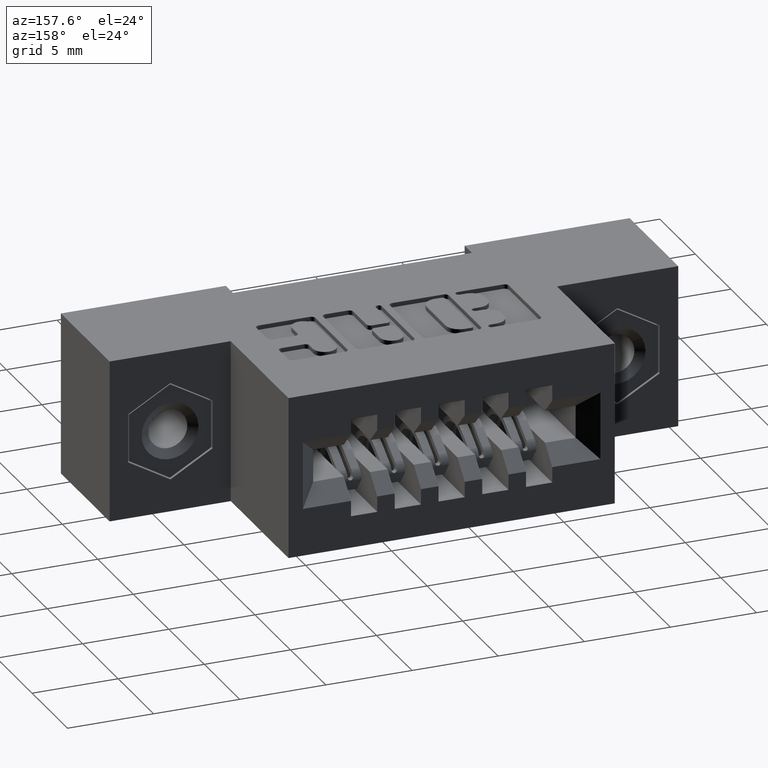
[diagram: clean part render]
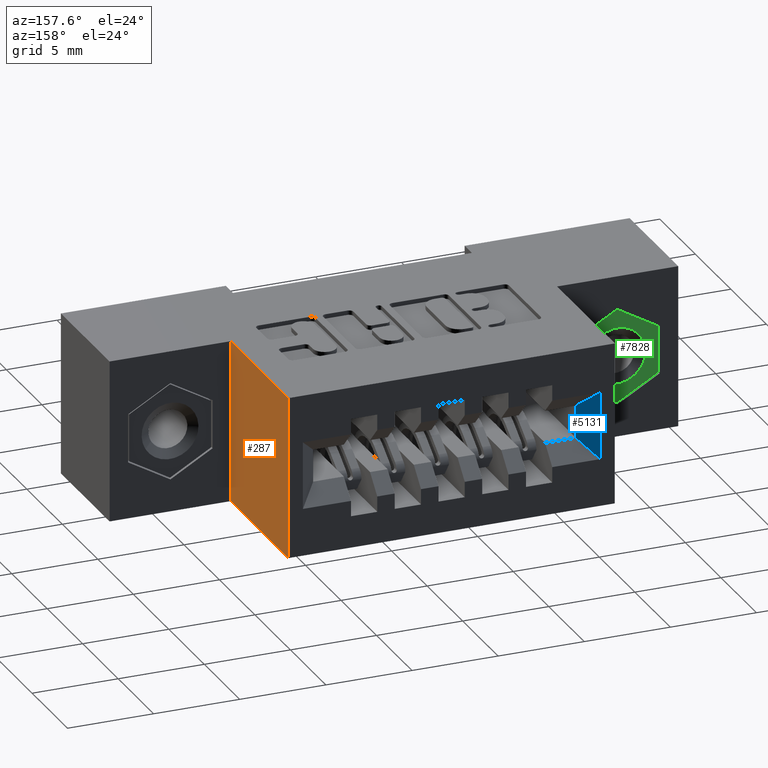
[diagram: same view with three faces highlighted in distinct colors, each labeled with its STEP entity id]
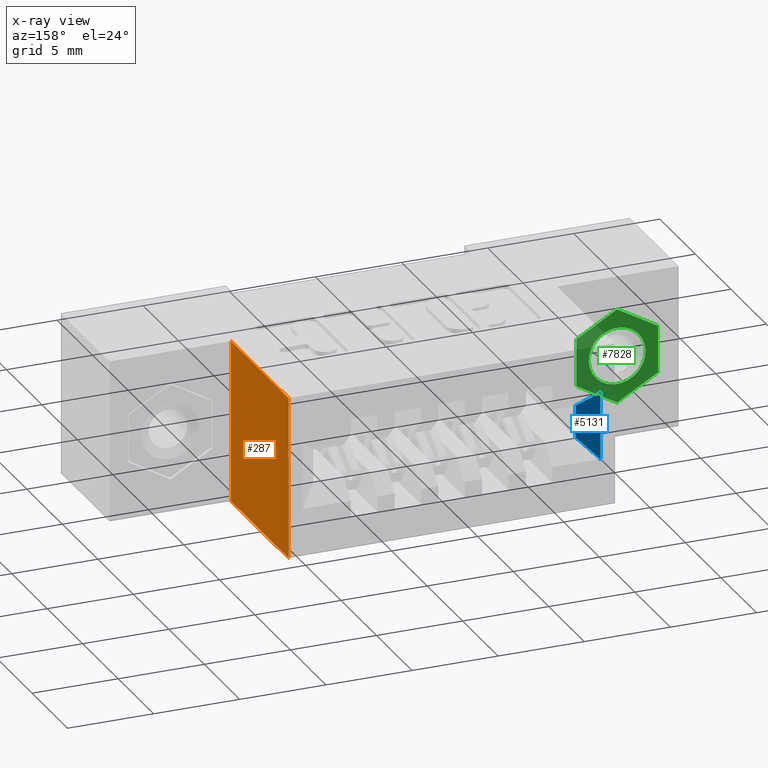
[diagram: x-ray of the same camera — body ghosted, the three highlighted faces saturated]
A machine part, auxiliary view with three faces highlighted in distinct colors.
The next image is the same camera in x-ray (body ghosted, the three faces saturated) — at least one of them is partly hidden behind the body in this view.
Their STEP definitions:

[orange] entity #287 — the highlighted planar face has unit normal (-1, 0, 0).
#287 = ADVANCED_FACE ( 'NONE', ( #5401 ), #4410, .F. ) ;
#342 = EDGE_CURVE ( 'NONE', #1365, #6610, #6550, .T. ) ;
#370 = DIRECTION ( 'NONE',  ( -1.000000000000000000, 0.0000000000000000000, 0.0000000000000000000 ) ) ;
#730 = EDGE_CURVE ( 'NONE', #7582, #5308, #5073, .T. ) ;
#858 = EDGE_LOOP ( 'NONE', ( #7861, #2056, #6873, #7873 ) ) ;
#1127 = DIRECTION ( 'NONE',  ( 0.0000000000000000000, 0.0000000000000000000, 1.000000000000000000 ) ) ;
#1313 = EDGE_CURVE ( 'NONE', #6610, #5308, #3882, .T. ) ;
#1365 = VERTEX_POINT ( 'NONE', #4571 ) ;
#2056 = ORIENTED_EDGE ( 'NONE', *, *, #730, .F. ) ;
#2060 = AXIS2_PLACEMENT_3D ( 'NONE', #5228, #370, #1127 ) ;
#2351 = CARTESIAN_POINT ( 'NONE',  ( 1.022999999999999500, 0.2699999999999999600, -0.3699999999999991100 ) ) ;
#3072 = CARTESIAN_POINT ( 'NONE',  ( 1.022999999999999500, 0.5899999999999999700, -1.083200093845833700E-016 ) ) ;
#3882 = LINE ( 'NONE', #7518, #5675 ) ;
#4070 = CARTESIAN_POINT ( 'NONE',  ( 1.022999999999999500, 0.5899999999999999700, -0.3700000000000000000 ) ) ;
#4257 = DIRECTION ( 'NONE',  ( 0.0000000000000000000, 0.0000000000000000000, 1.000000000000000000 ) ) ;
#4410 = PLANE ( 'NONE',  #2060 ) ;
#4565 = VECTOR ( 'NONE', #8458, 39.37007874015748100 ) ;
#4571 = CARTESIAN_POINT ( 'NONE',  ( 1.022999999999999500, 0.2699999999999999600, -0.3699999999999991100 ) ) ;
#5073 = LINE ( 'NONE', #7016, #7767 ) ;
#5101 = DIRECTION ( 'NONE',  ( -0.0000000000000000000, 1.000000000000000000, -0.0000000000000000000 ) ) ;
#5228 = CARTESIAN_POINT ( 'NONE',  ( 1.022999999999999500, 0.2699999999999999600, -0.3699999999999991100 ) ) ;
#5308 = VERTEX_POINT ( 'NONE', #3072 ) ;
#5401 = FACE_OUTER_BOUND ( 'NONE', #858, .T. ) ;
#5675 = VECTOR ( 'NONE', #8192, 39.37007874015748100 ) ;
#5721 = VECTOR ( 'NONE', #4257, 39.37007874015748100 ) ;
#6550 = LINE ( 'NONE', #2351, #4565 ) ;
#6610 = VERTEX_POINT ( 'NONE', #4070 ) ;
#6624 = CARTESIAN_POINT ( 'NONE',  ( 1.022999999999999500, 0.2699999999999999600, -0.3699999999999991100 ) ) ;
#6873 = ORIENTED_EDGE ( 'NONE', *, *, #7258, .F. ) ;
#7016 = CARTESIAN_POINT ( 'NONE',  ( 1.022999999999999500, 0.2699999999999999600, -1.083200093845833700E-016 ) ) ;
#7191 = CARTESIAN_POINT ( 'NONE',  ( 1.022999999999999500, 0.2699999999999999600, -1.083200093845833700E-016 ) ) ;
#7258 = EDGE_CURVE ( 'NONE', #1365, #7582, #7678, .T. ) ;
#7518 = CARTESIAN_POINT ( 'NONE',  ( 1.022999999999999500, 0.5899999999999999700, -0.3699999999999991100 ) ) ;
#7582 = VERTEX_POINT ( 'NONE', #7191 ) ;
#7678 = LINE ( 'NONE', #6624, #5721 ) ;
#7767 = VECTOR ( 'NONE', #5101, 39.37007874015748100 ) ;
#7861 = ORIENTED_EDGE ( 'NONE', *, *, #1313, .T. ) ;
#7873 = ORIENTED_EDGE ( 'NONE', *, *, #342, .T. ) ;
#8192 = DIRECTION ( 'NONE',  ( 0.0000000000000000000, 0.0000000000000000000, 1.000000000000000000 ) ) ;
#8458 = DIRECTION ( 'NONE',  ( -0.0000000000000000000, 1.000000000000000000, -0.0000000000000000000 ) ) ;

[blue] entity #5131 — the highlighted planar face has unit normal (-0.7071, -0.7071, 0).
#193 = CARTESIAN_POINT ( 'NONE',  ( 0.3099999999999995500, 0.5899999999999999700, -0.1079999999999997800 ) ) ;
#276 = DIRECTION ( 'NONE',  ( 0.5773502691896269500, -0.5773502691896230700, 0.5773502691896269500 ) ) ;
#738 = PLANE ( 'NONE',  #8900 ) ;
#772 = EDGE_CURVE ( 'NONE', #7410, #7939, #2974, .T. ) ;
#795 = VECTOR ( 'NONE', #3440, 39.37007874015748100 ) ;
#1058 = LINE ( 'NONE', #8409, #795 ) ;
#1086 = VECTOR ( 'NONE', #3581, 39.37007874015748100 ) ;
#1288 = EDGE_CURVE ( 'NONE', #3828, #7410, #4527, .T. ) ;
#1305 = ORIENTED_EDGE ( 'NONE', *, *, #1768, .F. ) ;
#1539 = DIRECTION ( 'NONE',  ( 0.7071067811865499000, -0.7071067811865451300, 0.0000000000000000000 ) ) ;
#1709 = EDGE_CURVE ( 'NONE', #7939, #8742, #8692, .T. ) ;
#1768 = EDGE_CURVE ( 'NONE', #8742, #3828, #1058, .T. ) ;
#2561 = CARTESIAN_POINT ( 'NONE',  ( 0.3499999999999999800, 0.5499999999999998200, -0.2220000000000002000 ) ) ;
#2815 = DIRECTION ( 'NONE',  ( -0.5773502691896270600, 0.5773502691896231800, 0.5773502691896272900 ) ) ;
#2892 = CARTESIAN_POINT ( 'NONE',  ( 0.3499999999999999800, 0.5499999999999998200, -0.1480000000000001900 ) ) ;
#2974 = LINE ( 'NONE', #3780, #1086 ) ;
#3356 = VECTOR ( 'NONE', #2815, 39.37007874015747400 ) ;
#3440 = DIRECTION ( 'NONE',  ( 0.0000000000000000000, 0.0000000000000000000, -1.000000000000000000 ) ) ;
#3581 = DIRECTION ( 'NONE',  ( 0.0000000000000000000, 0.0000000000000000000, 1.000000000000000000 ) ) ;
#3629 = ORIENTED_EDGE ( 'NONE', *, *, #1709, .F. ) ;
#3780 = CARTESIAN_POINT ( 'NONE',  ( 0.3499999999999999800, 0.5499999999999998200, -0.1480000000000001900 ) ) ;
#3828 = VERTEX_POINT ( 'NONE', #4425 ) ;
#4405 = CARTESIAN_POINT ( 'NONE',  ( 0.3499999999999999800, 0.5499999999999998200, -0.2220000000000002000 ) ) ;
#4425 = CARTESIAN_POINT ( 'NONE',  ( 0.3099999999999995500, 0.5899999999999999700, -0.2620000000000005700 ) ) ;
#4527 = LINE ( 'NONE', #2561, #7853 ) ;
#5131 = ADVANCED_FACE ( 'NONE', ( #6162 ), #738, .F. ) ;
#5580 = DIRECTION ( 'NONE',  ( -0.7071067811865451300, -0.7071067811865499000, 0.0000000000000000000 ) ) ;
#6162 = FACE_OUTER_BOUND ( 'NONE', #8272, .T. ) ;
#7054 = ORIENTED_EDGE ( 'NONE', *, *, #1288, .F. ) ;
#7410 = VERTEX_POINT ( 'NONE', #4405 ) ;
#7471 = CARTESIAN_POINT ( 'NONE',  ( 0.3499999999999999800, 0.5499999999999998200, -0.1480000000000001900 ) ) ;
#7853 = VECTOR ( 'NONE', #276, 39.37007874015748900 ) ;
#7939 = VERTEX_POINT ( 'NONE', #7471 ) ;
#8247 = CARTESIAN_POINT ( 'NONE',  ( 0.3499999999999999800, 0.5499999999999998200, -0.1480000000000001900 ) ) ;
#8272 = EDGE_LOOP ( 'NONE', ( #7054, #1305, #3629, #8282 ) ) ;
#8282 = ORIENTED_EDGE ( 'NONE', *, *, #772, .F. ) ;
#8409 = CARTESIAN_POINT ( 'NONE',  ( 0.3099999999999995500, 0.5899999999999999700, -0.3700000000000000000 ) ) ;
#8692 = LINE ( 'NONE', #2892, #3356 ) ;
#8742 = VERTEX_POINT ( 'NONE', #193 ) ;
#8900 = AXIS2_PLACEMENT_3D ( 'NONE', #8247, #5580, #1539 ) ;

[green] entity #7828 — the highlighted planar face has unit normal (-0, -1, -0).
#40 = VERTEX_POINT ( 'NONE', #563 ) ;
#135 = EDGE_LOOP ( 'NONE', ( #5871, #6983 ) ) ;
#274 = VERTEX_POINT ( 'NONE', #3132 ) ;
#396 = ORIENTED_EDGE ( 'NONE', *, *, #8489, .F. ) ;
#479 = CARTESIAN_POINT ( 'NONE',  ( 0.0000000000000000000, 4.780733988912460100E-016, -0.1079645003384597700 ) ) ;
#521 = CARTESIAN_POINT ( 'NONE',  ( -4.097771990496394800E-016, 0.0000000000000000000, 0.1079645003384601700 ) ) ;
#563 = CARTESIAN_POINT ( 'NONE',  ( -0.09350000000000011100, 0.0000000000000000000, -0.05398225016922967400 ) ) ;
#742 = CARTESIAN_POINT ( 'NONE',  ( -1.365923996832131600E-016, -6.829619984160658000E-017, 0.0000000000000000000 ) ) ;
#761 = DIRECTION ( 'NONE',  ( 5.968164126255291300E-016, -1.000000000000000000, 4.048957226368561900E-017 ) ) ;
#939 = CIRCLE ( 'NONE', #2733, 0.06500000000000014100 ) ;
#1014 = AXIS2_PLACEMENT_3D ( 'NONE', #5397, #2075, #6740 ) ;
#1259 = VERTEX_POINT ( 'NONE', #479 ) ;
#1408 = EDGE_CURVE ( 'NONE', #3342, #6070, #939, .T. ) ;
#1561 = CARTESIAN_POINT ( 'NONE',  ( 0.09349999999999957000, 4.780733988912460100E-016, 0.05398225016923008400 ) ) ;
#1582 = CARTESIAN_POINT ( 'NONE',  ( 0.09349999999999936100, 4.780733988912460100E-016, -0.05398225016923063200 ) ) ;
#1681 = DIRECTION ( 'NONE',  ( 1.110223024625156300E-016, 4.048957226368544000E-017, -1.000000000000000000 ) ) ;
#1846 = ORIENTED_EDGE ( 'NONE', *, *, #8614, .F. ) ;
#2075 = DIRECTION ( 'NONE',  ( -5.968164126255291300E-016, 1.000000000000000000, 4.048957226368540300E-017 ) ) ;
#2159 = CARTESIAN_POINT ( 'NONE',  ( -0.09350000000000011100, 0.0000000000000000000, -0.05398225016922967400 ) ) ;
#2585 = CARTESIAN_POINT ( 'NONE',  ( 0.09349999999999936100, 4.780733988912460100E-016, -0.05398225016923063200 ) ) ;
#2601 = FACE_BOUND ( 'NONE', #135, .T. ) ;
#2733 = AXIS2_PLACEMENT_3D ( 'NONE', #742, #4061, #1681 ) ;
#2880 = EDGE_LOOP ( 'NONE', ( #1846, #6527, #8232, #4494, #4766, #396 ) ) ;
#2946 = DIRECTION ( 'NONE',  ( -6.106226635438361000E-016, 4.048957226368613700E-017, -1.000000000000000000 ) ) ;
#3124 = LINE ( 'NONE', #1561, #6463 ) ;
#3132 = CARTESIAN_POINT ( 'NONE',  ( 0.09349999999999957000, 4.780733988912460100E-016, 0.05398225016923008400 ) ) ;
#3342 = VERTEX_POINT ( 'NONE', #8641 ) ;
#3385 = CARTESIAN_POINT ( 'NONE',  ( -0.09350000000000025000, 0.0000000000000000000, 0.05398225016923036100 ) ) ;
#3413 = LINE ( 'NONE', #5911, #4984 ) ;
#3672 = CARTESIAN_POINT ( 'NONE',  ( -1.293759500231496200E-016, -7.092802203874615000E-017, -0.06500000000000015500 ) ) ;
#4025 = VERTEX_POINT ( 'NONE', #2585 ) ;
#4061 = DIRECTION ( 'NONE',  ( 5.968164126255291300E-016, -1.000000000000000000, 4.048957226368561900E-017 ) ) ;
#4473 = VECTOR ( 'NONE', #4809, 39.37007874015748900 ) ;
#4494 = ORIENTED_EDGE ( 'NONE', *, *, #8220, .F. ) ;
#4680 = LINE ( 'NONE', #6117, #4473 ) ;
#4733 = PLANE ( 'NONE',  #1014 ) ;
#4766 = ORIENTED_EDGE ( 'NONE', *, *, #7915, .F. ) ;
#4809 = DIRECTION ( 'NONE',  ( -0.8660254037844384900, 4.966133885973610100E-016, 0.5000000000000001100 ) ) ;
#4934 = CARTESIAN_POINT ( 'NONE',  ( -1.365923996832131600E-016, -6.829619984160658000E-017, 0.0000000000000000000 ) ) ;
#4984 = VECTOR ( 'NONE', #6601, 39.37007874015748100 ) ;
#5191 = LINE ( 'NONE', #1582, #8545 ) ;
#5397 = CARTESIAN_POINT ( 'NONE',  ( 0.0000000000000000000, 4.780733988912460100E-016, -0.1079645003384597700 ) ) ;
#5526 = LINE ( 'NONE', #2159, #5736 ) ;
#5590 = DIRECTION ( 'NONE',  ( 1.110223024625156300E-016, 4.048957226368544000E-017, -1.000000000000000000 ) ) ;
#5698 = VERTEX_POINT ( 'NONE', #3385 ) ;
#5736 = VECTOR ( 'NONE', #6806, 39.37007874015748100 ) ;
#5848 = CARTESIAN_POINT ( 'NONE',  ( -0.09350000000000025000, 0.0000000000000000000, 0.05398225016923036100 ) ) ;
#5871 = ORIENTED_EDGE ( 'NONE', *, *, #8012, .F. ) ;
#5911 = CARTESIAN_POINT ( 'NONE',  ( -4.097771990496394800E-016, 0.0000000000000000000, 0.1079645003384601700 ) ) ;
#6051 = AXIS2_PLACEMENT_3D ( 'NONE', #4934, #761, #5590 ) ;
#6070 = VERTEX_POINT ( 'NONE', #3672 ) ;
#6117 = CARTESIAN_POINT ( 'NONE',  ( 0.0000000000000000000, 4.780733988912460100E-016, -0.1079645003384597700 ) ) ;
#6157 = FACE_OUTER_BOUND ( 'NONE', #2880, .T. ) ;
#6355 = VECTOR ( 'NONE', #6530, 39.37007874015748100 ) ;
#6463 = VECTOR ( 'NONE', #2946, 39.37007874015748100 ) ;
#6527 = ORIENTED_EDGE ( 'NONE', *, *, #8027, .F. ) ;
#6530 = DIRECTION ( 'NONE',  ( 0.8660254037844389300, -5.371029608610466600E-016, 0.4999999999999994400 ) ) ;
#6568 = LINE ( 'NONE', #5848, #6355 ) ;
#6601 = DIRECTION ( 'NONE',  ( 0.8660254037844388200, -4.966133885973615100E-016, -0.4999999999999998300 ) ) ;
#6740 = DIRECTION ( 'NONE',  ( -1.110223024625156500E-016, -4.048957226368547100E-017, 1.000000000000000000 ) ) ;
#6806 = DIRECTION ( 'NONE',  ( -1.110223024625156500E-016, -4.048957226368547100E-017, 1.000000000000000000 ) ) ;
#6983 = ORIENTED_EDGE ( 'NONE', *, *, #1408, .F. ) ;
#7620 = EDGE_CURVE ( 'NONE', #7809, #274, #3413, .T. ) ;
#7809 = VERTEX_POINT ( 'NONE', #521 ) ;
#7828 = ADVANCED_FACE ( 'NONE', ( #2601, #6157 ), #4733, .F. ) ;
#7915 = EDGE_CURVE ( 'NONE', #40, #5698, #5526, .T. ) ;
#8012 = EDGE_CURVE ( 'NONE', #6070, #3342, #8665, .T. ) ;
#8027 = EDGE_CURVE ( 'NONE', #274, #4025, #3124, .T. ) ;
#8220 = EDGE_CURVE ( 'NONE', #5698, #7809, #6568, .T. ) ;
#8232 = ORIENTED_EDGE ( 'NONE', *, *, #7620, .F. ) ;
#8283 = DIRECTION ( 'NONE',  ( -0.8660254037844383700, 5.371029608610464600E-016, -0.5000000000000004400 ) ) ;
#8489 = EDGE_CURVE ( 'NONE', #1259, #40, #4680, .T. ) ;
#8545 = VECTOR ( 'NONE', #8283, 39.37007874015748100 ) ;
#8614 = EDGE_CURVE ( 'NONE', #4025, #1259, #5191, .T. ) ;
#8641 = CARTESIAN_POINT ( 'NONE',  ( -1.358486451488188800E-016, -6.566437764446701100E-017, 0.06500000000000014100 ) ) ;
#8665 = CIRCLE ( 'NONE', #6051, 0.06500000000000014100 ) ;